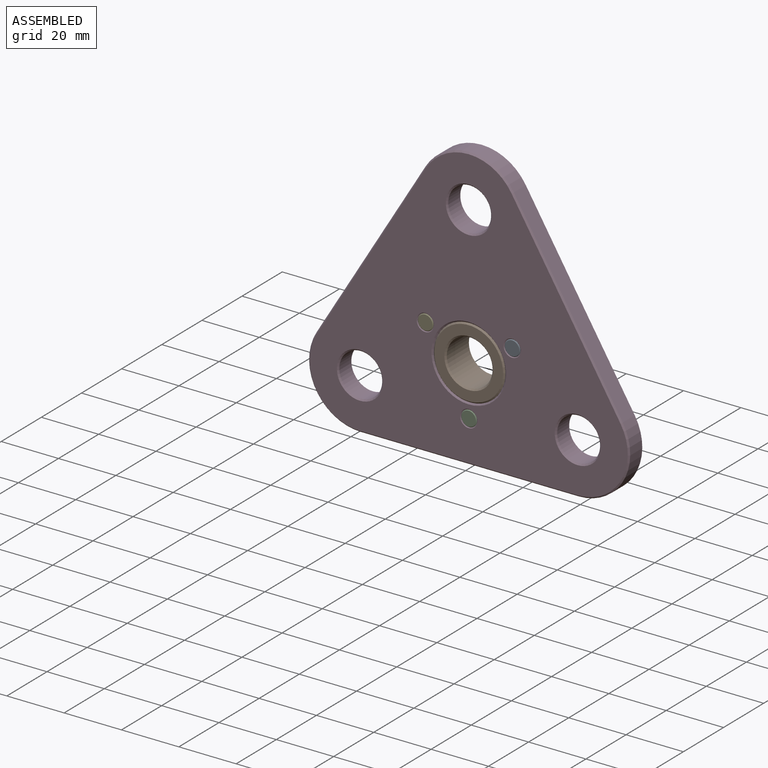
[diagram: assembled view]
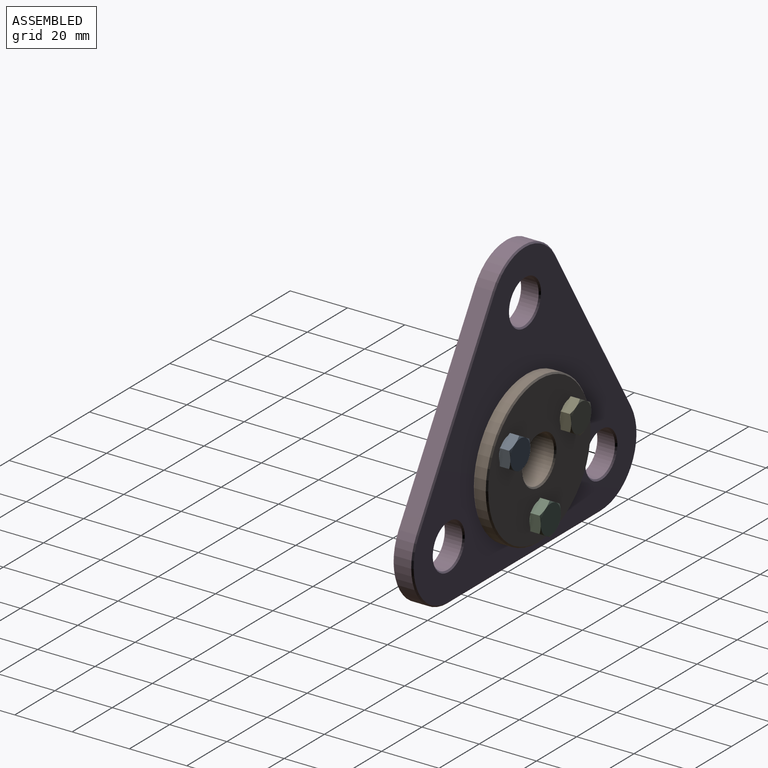
[diagram: assembled view, second angle]
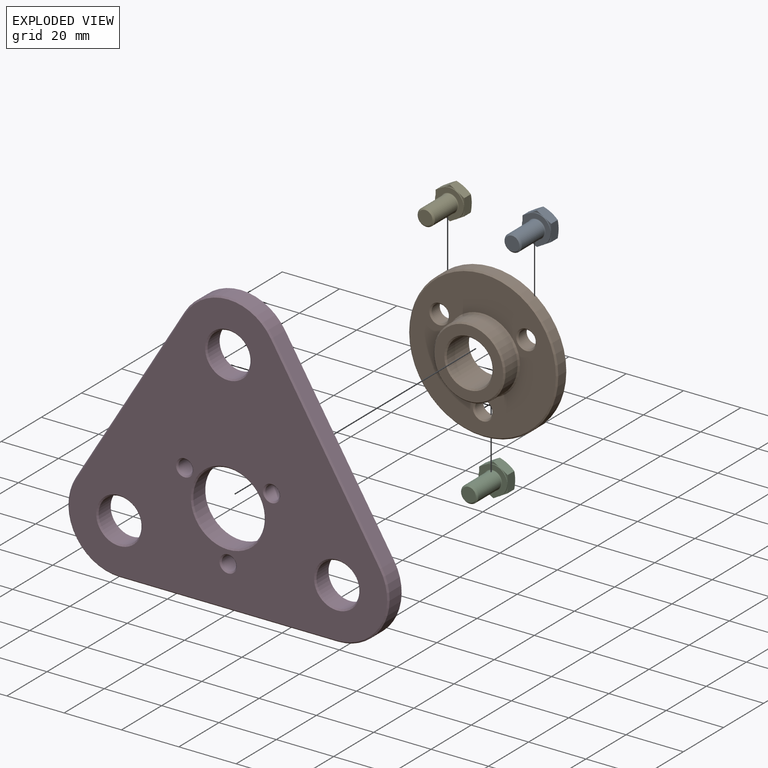
[diagram: exploded view]
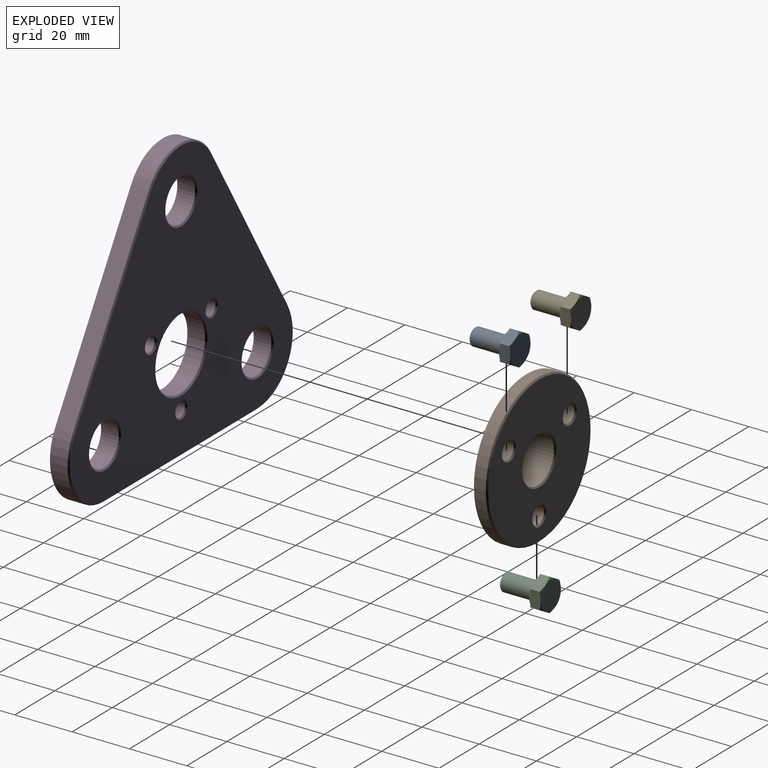
[diagram: exploded view, second angle]
ASSEMBLY  parts=5 mates=4
PART A: 25 faces, bbox 16.5x12x12 mm
  f0: plane 5x5mm, normal (1,0,0), area 19.6mm2, adj f24
  f1: plane 4.33x2.5mm, normal (1,0,0), area 1.3mm2, adj f7,f11,f16
  f2: plane 4.33x2.5mm, normal (1,0,0), area 1.3mm2, adj f7,f11,f12
  f3: plane 5x1.44mm, normal (1,0,0), area 1.3mm2, adj f7,f12,f13
  f4: plane 4.33x2.5mm, normal (1,0,0), area 1.3mm2, adj f7,f13,f14
  f5: plane 4.33x2.5mm, normal (1,0,0), area 1.3mm2, adj f7,f14,f15
  f6: plane 5x1.44mm, normal (1,0,0), area 1.3mm2, adj f7,f15,f16
  f7: cylinder r=5mm len=10mm, axis (1,0,0), area 9.4mm2, adj f1,f2,f3,f4,f5,f6,f8
  f8: plane 10x10mm, normal (1,0,0), area 45.4mm2, adj f7,f9
  f9: torus R=3.25mm, axis (1,0,0), area 7.6mm2, adj f8,f10
  f10: cylinder r=3mm len=11.25mm, axis (1,0,0), area 212.1mm2, adj f9,f24
  f11: plane 6.25x4.18mm, normal (0,0,1), area 20.5mm2, adj f1,f2,f12,f16,f17,f18
  f12: plane 5.47x4.18mm, normal (0,0.87,0.5), area 20.5mm2, adj f2,f3,f11,f13,f17,f21
  f13: plane 5.47x4.18mm, normal (0,0.87,-0.5), area 20.5mm2, adj f3,f4,f12,f14,f20,f21
  f14: plane 6.25x4.18mm, normal (0,0,-1), area 20.5mm2, adj f4,f5,f13,f15,f19,f20
  f15: plane 5.47x4.18mm, normal (0,-0.87,-0.5), area 20.5mm2, adj f5,f6,f14,f16,f19,f23
  f16: plane 5.47x4.18mm, normal (0,-0.87,0.5), area 20.5mm2, adj f1,f6,f11,f15,f18,f23
  f17: cone r=5mm half-angle=60deg, axis (1,0,0), area 2.5mm2, adj f11,f12,f22
  f18: cone r=5mm half-angle=60deg, axis (1,0,0), area 2.5mm2, adj f11,f16,f22
  f19: cone r=5mm half-angle=60deg, axis (1,0,0), area 2.5mm2, adj f14,f15,f22
  f20: cone r=5mm half-angle=60deg, axis (1,0,0), area 2.5mm2, adj f13,f14,f22
  f21: cone r=5mm half-angle=60deg, axis (1,0,0), area 2.5mm2, adj f12,f13,f22
  f22: plane 10x10mm, normal (-1,0,0), area 78.5mm2, adj f17,f18,f19,f20,f21,f23
  f23: cone r=5mm half-angle=60deg, axis (1,0,0), area 2.5mm2, adj f15,f16,f22
  f24: cone r=2.5mm half-angle=45deg, axis (-1,0,0), area 12.2mm2, adj f0,f10
PART B: 21 faces, bbox 52x52x12 mm
  f0: cylinder r=3mm len=6mm, axis (0,0,-1), area 75.4mm2, adj f12,f17
  f1: cylinder r=3mm len=6mm, axis (0,0,-1), area 75.4mm2, adj f11,f16
  f2: cylinder r=3mm len=6mm, axis (0,0,-1), area 75.4mm2, adj f10,f15
  f3: cylinder r=26mm len=52mm, axis (0,0,-1), area 653.5mm2, adj f13,f18
  f4: plane 51x51mm, normal (0,0,1), area 1396.4mm2, adj f14,f15,f16,f17,f18
  f5: plane 51x51mm, normal (0,0,-1), area 1700.4mm2, adj f9,f10,f11,f12,f13
  f6: cylinder r=8mm len=16mm, axis (0,0,-1), area 552.9mm2, adj f9,f19
  f7: cylinder r=12.5mm len=25mm, axis (0,0,-1), area 471.2mm2, adj f14,f20
  f8: plane 24x24mm, normal (0,0,1), area 225.4mm2, adj f19,f20
  f9: cone r=8.5mm half-angle=45deg, axis (0,0,-1), area 36.7mm2, adj f5,f6
  f10: cone r=3.5mm half-angle=45deg, axis (0,0,-1), area 14.4mm2, adj f2,f5
  f11: cone r=3.5mm half-angle=45deg, axis (0,0,-1), area 14.4mm2, adj f1,f5
  f12: cone r=3.5mm half-angle=45deg, axis (0,0,-1), area 14.4mm2, adj f0,f5
  f13: cone r=26mm half-angle=45deg, axis (0,0,1), area 114.4mm2, adj f3,f5
  f14: cone r=12.5mm half-angle=45deg, axis (0,0,-1), area 56.6mm2, adj f4,f7
  f15: cone r=3mm half-angle=45deg, axis (0,0,1), area 14.4mm2, adj f2,f4
  f16: cone r=3mm half-angle=45deg, axis (0,0,1), area 14.4mm2, adj f1,f4
  f17: cone r=3mm half-angle=45deg, axis (0,0,1), area 14.4mm2, adj f0,f4
  f18: cone r=25.5mm half-angle=45deg, axis (0,0,-1), area 114.4mm2, adj f3,f4
  f19: cone r=8mm half-angle=45deg, axis (0,0,1), area 36.7mm2, adj f6,f8
  f20: cone r=12mm half-angle=45deg, axis (0,0,-1), area 54.4mm2, adj f7,f8
PART C: same geometry as A
PART D: 41 faces, bbox 112x7x98.4 mm
  f0: cylinder r=18mm len=27.36mm, axis (0,1,0), area 228.7mm2, adj f1,f9,f24,f37
  f1: plane 62.39x38mm, normal (0.85,0,0.52), area 438.3mm2, adj f0,f2,f22,f35
  f2: cylinder r=18mm len=30.75mm, axis (0,1,0), area 221.1mm2, adj f1,f3,f23,f36
  f3: plane 62.39x38mm, normal (-0.85,0,0.52), area 438.3mm2, adj f2,f4,f25,f38
  f4: cylinder r=18mm len=27.36mm, axis (0,1,0), area 228.7mm2, adj f3,f9,f27,f40
  f5: cylinder r=7.5mm len=15mm, axis (0,1,0), area 282.7mm2, adj f21,f34
  f6: cylinder r=7.5mm len=15mm, axis (0,1,0), area 282.7mm2, adj f20,f33
  f7: cylinder r=7.5mm len=15mm, axis (0,1,0), area 282.7mm2, adj f19,f32
  f8: cylinder r=12.5mm len=25mm, axis (0,1,0), area 471.2mm2, adj f18,f31
  f9: plane 76x6mm, normal (0,0,-1), area 456mm2, adj f0,f4,f26,f39
  f10: plane 111x97.39mm, normal (0,-1,0), area 6001.1mm2, adj f28,f29,f30,f31,f32,f33,f34,f35
  f11: plane 111x97.39mm, normal (0,1,0), area 6001.1mm2, adj f15,f16,f17,f18,f19,f20,f21,f22
  f12: cylinder r=2.5mm len=6mm, axis (0,-1,0), area 94.2mm2, adj f17,f30
  f13: cylinder r=2.5mm len=6mm, axis (0,-1,0), area 94.2mm2, adj f16,f29
  f14: cylinder r=2.5mm len=6mm, axis (0,-1,0), area 94.2mm2, adj f15,f28
  f15: cone r=2.5mm half-angle=45deg, axis (0,1,0), area 12.2mm2, adj f11,f14
  f16: cone r=2.5mm half-angle=45deg, axis (0,1,0), area 12.2mm2, adj f11,f13
  f17: cone r=2.5mm half-angle=45deg, axis (0,1,0), area 12.2mm2, adj f11,f12
  f18: cone r=13mm half-angle=45deg, axis (0,1,0), area 56.6mm2, adj f8,f11
  f19: cone r=8mm half-angle=45deg, axis (0,1,0), area 34.4mm2, adj f7,f11
  f20: cone r=8mm half-angle=45deg, axis (0,1,0), area 34.4mm2, adj f6,f11
  f21: cone r=8mm half-angle=45deg, axis (0,1,0), area 34.4mm2, adj f5,f11
  f22: plane 62.66x38.43mm, normal (0.6,0.71,0.37), area 51.7mm2, adj f1,f11,f23,f24
  f23: cone r=18mm half-angle=45deg, axis (0,-1,0), area 25.7mm2, adj f2,f11,f22,f25
  f24: cone r=18mm half-angle=45deg, axis (0,-1,0), area 26.6mm2, adj f0,f11,f22,f26
  f25: plane 62.66x38.43mm, normal (-0.6,0.71,0.37), area 51.7mm2, adj f3,f11,f23,f27
  f26: plane 76x0.5mm, normal (0,0.71,-0.71), area 53.7mm2, adj f9,f11,f24,f27
  f27: cone r=18mm half-angle=45deg, axis (0,-1,0), area 26.6mm2, adj f4,f11,f25,f26
  f28: cone r=2.5mm half-angle=45deg, axis (0,-1,0), area 12.2mm2, adj f10,f14
  f29: cone r=2.5mm half-angle=45deg, axis (0,-1,0), area 12.2mm2, adj f10,f13
  f30: cone r=2.5mm half-angle=45deg, axis (0,-1,0), area 12.2mm2, adj f10,f12
  f31: cone r=12.5mm half-angle=45deg, axis (0,-1,0), area 56.6mm2, adj f8,f10
  f32: cone r=7.5mm half-angle=45deg, axis (0,-1,0), area 34.4mm2, adj f7,f10
  f33: cone r=7.5mm half-angle=45deg, axis (0,-1,0), area 34.4mm2, adj f6,f10
  f34: cone r=7.5mm half-angle=45deg, axis (0,-1,0), area 34.4mm2, adj f5,f10
  f35: plane 62.66x38.43mm, normal (0.6,-0.71,0.37), area 51.7mm2, adj f1,f10,f36,f37
  f36: cone r=17.5mm half-angle=45deg, axis (0,1,0), area 25.7mm2, adj f2,f10,f35,f38
  f37: cone r=17.5mm half-angle=45deg, axis (0,1,0), area 26.6mm2, adj f0,f10,f35,f39
  f38: plane 62.66x38.43mm, normal (-0.6,-0.71,0.37), area 51.7mm2, adj f3,f10,f36,f40
  f39: plane 76x0.5mm, normal (0,-0.71,-0.71), area 53.7mm2, adj f9,f10,f37,f40
  f40: cone r=17.5mm half-angle=45deg, axis (0,1,0), area 26.6mm2, adj f4,f10,f38,f39
PART E: same geometry as A
PLACE A rot(axis=(0.58,-0.58,-0.58),120deg) t=(15.16,5,8.75)mm
PLACE B rot(axis=(1,0,0),90deg) t=(0,5,0)mm
PLACE C rot(axis=(0.58,-0.58,-0.58),120deg) t=(0,5,-17.5)mm
PLACE D at identity fixed
PLACE E rot(axis=(0.58,-0.58,-0.58),120deg) t=(-15.16,5,8.75)mm
MATE fastened E.f7 <-> B.f1  axis (0,-1,0) through (-15.16,5,8.75)mm
MATE fastened B.f3 <-> D.f8  axis (0,-1,0) through (0,0,0)mm
MATE fastened A.f7 <-> B.f2  axis (0,-1,0) through (15.16,5,8.75)mm
MATE fastened C.f7 <-> B.f0  axis (0,-1,0) through (0,5,-17.5)mm
